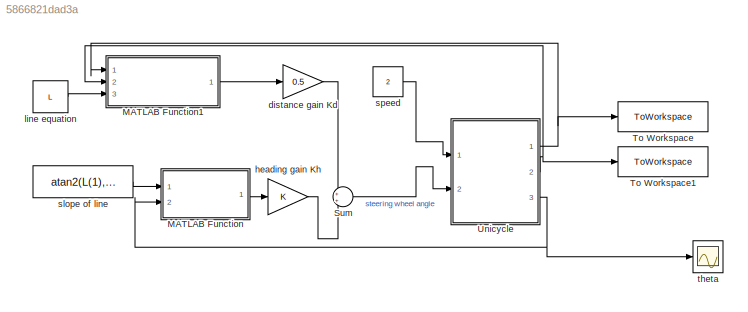
MODEL slx_5866821dad3a
KIND model
CONFIG AbsTol = auto
CONFIG EnableMultiTasking = off
CONFIG FixedStep = auto
CONFIG InitFcn = if ~exist('x0')\n  x0 = [0 0 0];\n  msgbox(sprintf('x0 not defined in workspace, setting it to [%g %g %g]\n', x0));\nend\nif ~exist('L')\n  L = [1 -1 0];\n  msgbox(sprintf('L not defined in workspace, setting it to [%g %g %g]\n', L));\nend\n% clean up old vehicle icons\nset(0, 'ShowHiddenHandles', 'on')\ndelete(findobj('Tag', 'vehicle'))\nset(0, 'ShowHiddenHandles', 'off')
CONFIG MaxStep = auto
CONFIG MinStep = auto
CONFIG RelTol = 1e-3
CONFIG SampleTimeConstraint = Unconstrained
CONFIG SolverName = VariableStepAuto
CONFIG StartTime = 0.0
CONFIG StopFcn = % update the XY scope\nset(0, 'ShowHiddenHandles', 'on')\nfig = findobj('name', 'XY');\nax = findobj(fig, 'type', 'axes');\naxes(ax)\ngrid on\nhold on\n%plot_vehicle(x0, 'g', 'Tag', 'vehicle')\n%plot_homline(L, 'r--', 'Tag', 'vehicle')\nhold off\nset(0, 'ShowHiddenHandles', 'off')
CONFIG StopTime = 20.0
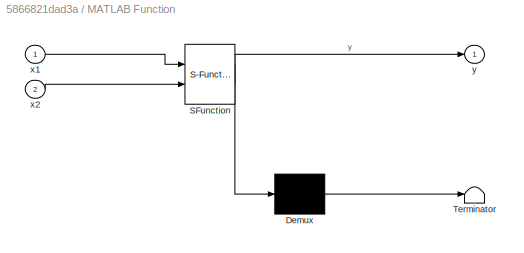
BLOCK [SubSystem] MATLAB Function
  ErrorFcn = Stateflow.Translate.translate
  PermitHierarchicalResolution = ExplicitOnly
  Ports = [2, 1]
  RequestExecContextInheritance = off
  SFBlockType = MATLAB Function
  TreatAsAtomicUnit = on
BLOCK [Demux] MATLAB Function/ Demux 
  Outputs = 1
  Ports = [1, 1]
BLOCK [S-Function] MATLAB Function/ SFunction 
  EnableBusSupport = on
  FunctionName = sf_sfun
  PortCounts = [2 2]
  Ports = [2, 2]
  SFcnIsStateOwnerBlock = off
  SFunctionDeploymentMode = off
  Tag = Stateflow S-Function 2
BLOCK [Terminator] MATLAB Function/ Terminator 
BLOCK [Inport] MATLAB Function/x1
BLOCK [Inport] MATLAB Function/x2
  Port = 2
BLOCK [Outport] MATLAB Function/y
  VectorParamsAs1DForOutWhenUnconnected = off
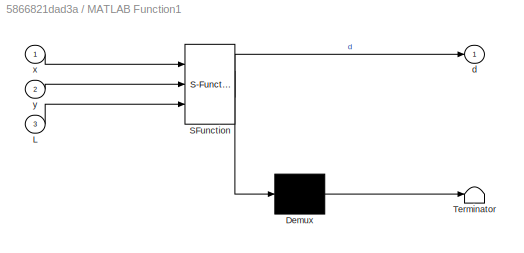
BLOCK [SubSystem] MATLAB Function1
  ErrorFcn = Stateflow.Translate.translate
  PermitHierarchicalResolution = ExplicitOnly
  Ports = [3, 1]
  RequestExecContextInheritance = off
  SFBlockType = MATLAB Function
  TreatAsAtomicUnit = on
BLOCK [Demux] MATLAB Function1/ Demux 
  Outputs = 1
  Ports = [1, 1]
BLOCK [S-Function] MATLAB Function1/ SFunction 
  EnableBusSupport = on
  FunctionName = sf_sfun
  PortCounts = [3 2]
  Ports = [3, 2]
  SFcnIsStateOwnerBlock = off
  SFunctionDeploymentMode = off
  Tag = Stateflow S-Function 1
BLOCK [Terminator] MATLAB Function1/ Terminator 
BLOCK [Inport] MATLAB Function1/L
  Port = 3
BLOCK [Outport] MATLAB Function1/d
  VectorParamsAs1DForOutWhenUnconnected = off
BLOCK [Inport] MATLAB Function1/x
BLOCK [Inport] MATLAB Function1/y
  Port = 2
BLOCK [Sum] Sum
  Ports = [2, 1]
BLOCK [ToWorkspace] To Workspace
  FixptAsFi = on
  MaxDataPoints = inf
  Ports = [1]
  SampleTime = -1
  Save2DSignal = 2-D array (concatenate along first dimension)
  VariableName = x
BLOCK [ToWorkspace] To Workspace1
  FixptAsFi = on
  MaxDataPoints = inf
  Ports = [1]
  SampleTime = -1
  Save2DSignal = 2-D array (concatenate along first dimension)
  VariableName = y
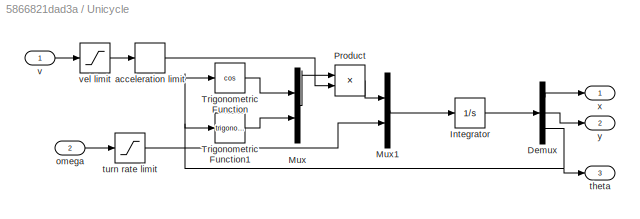
BLOCK [SubSystem] Unicycle
  Ports = [2, 3]
  RequestExecContextInheritance = off
BLOCK [Demux] Unicycle/Demux
  Outputs = 3
  Ports = [1, 3]
BLOCK [Integrator] Unicycle/Integrator
  InitialCondition = x0
  Ports = [1, 1]
BLOCK [Mux] Unicycle/Mux
  DisplayOption = bar
  Inputs = 2
  Ports = [2, 1]
BLOCK [Mux] Unicycle/Mux1
  DisplayOption = bar
  Inputs = 2
  Ports = [2, 1]
BLOCK [Product] Unicycle/Product
  Ports = [2, 1]
  RndMeth = Zero
BLOCK [Trigonometry] Unicycle/Trigonometric Function
  Operator = cos
  Ports = [1, 1]
BLOCK [Trigonometry] Unicycle/Trigonometric Function1
  Ports = [1, 1]
BLOCK [RateLimiter] Unicycle/acceleration limit
  FallingSlewLimit = -al
  RisingSlewLimit = al
  SampleTimeMode = inherited
BLOCK [Inport] Unicycle/omega
  Port = 2
BLOCK [Outport] Unicycle/theta
  Port = 3
  VectorParamsAs1DForOutWhenUnconnected = off
BLOCK [Saturate] Unicycle/turn rate limit
  LowerLimit = -ol
  UpperLimit = ol
BLOCK [Inport] Unicycle/v
BLOCK [Saturate] Unicycle/vel limit
  LowerLimit = -vl
  UpperLimit = vl
BLOCK [Outport] Unicycle/x
  VectorParamsAs1DForOutWhenUnconnected = off
BLOCK [Outport] Unicycle/y
  Port = 2
  VectorParamsAs1DForOutWhenUnconnected = off
BLOCK [Gain] distance gain Kd
  Gain = 0.5
BLOCK [Gain] heading gain Kh
BLOCK [Constant] line equation
  Value = L
BLOCK [Constant] slope of line
  Value = atan2(L(1),-L(2))
BLOCK [Constant] speed
  SampleTime = 0.02
  Value = 2
  VectorParams1D = off
BLOCK [Scope] theta
  Floating = off
  NumInputPorts = 1
  Ports = [1]
  ScopeSpecificationString = Simulink.scopes.TimeScopeBlockCfg('CurrentConfiguration', extmgr.ConfigurationSet(extmgr.Configuration('Core','General UI',true),extmgr.Configuration('Core','Source UI',true),extmgr.Configuration('Sources','WiredSimulink',true,'DataLoggingSaveFormat','StructureWithTime','DataLoggingDecimation','1'),extmgr.Configuration('Visuals','Time Domain',true,'SerializedDisplays',{struct('MinYLimReal','-0.078...<+1708ch>
LINE MATLAB Function1:1 -> distance gain Kd:1
LINE MATLAB Function:1 -> heading gain Kh:1
LINE Sum:1 -> Unicycle:2
LINE Unicycle/Demux:1 -> Unicycle/x:1
LINE Unicycle/Demux:2 -> Unicycle/y:1
NET Unicycle/Demux:3 -> Unicycle/Trigonometric Function1:1, Unicycle/Trigonometric Function:1, Unicycle/theta:1
LINE Unicycle/Integrator:1 -> Unicycle/Demux:1
LINE Unicycle/Mux1:1 -> Unicycle/Integrator:1
LINE Unicycle/Mux:1 -> Unicycle/Product:1
LINE Unicycle/Product:1 -> Unicycle/Mux1:1
LINE Unicycle/Trigonometric Function1:1 -> Unicycle/Mux:2
LINE Unicycle/Trigonometric Function:1 -> Unicycle/Mux:1
LINE Unicycle/acceleration limit:1 -> Unicycle/Product:2
LINE Unicycle/omega:1 -> Unicycle/turn rate limit:1
LINE Unicycle/turn rate limit:1 -> Unicycle/Mux1:2
LINE Unicycle/v:1 -> Unicycle/vel limit:1
LINE Unicycle/vel limit:1 -> Unicycle/acceleration limit:1
NET Unicycle:1 -> MATLAB Function1:1, To Workspace:1
NET Unicycle:2 -> MATLAB Function1:2, To Workspace1:1
NET Unicycle:3 -> MATLAB Function:2, theta:1
LINE distance gain Kd:1 -> Sum:1
LINE heading gain Kh:1 -> Sum:2
LINE line equation:1 -> MATLAB Function1:3
LINE slope of line:1 -> MATLAB Function:1
LINE speed:1 -> Unicycle:1
note: NET lines group one-source signal fan-out (src -> all destinations, sorted); 1:1 wires keep LINE
CHART MATLAB Function states=1 transitions=1
  STATE_LABEL 'eML_blk_kernel()'
  STATE_LABEL 'SCRIPT:\nfunction y = ang_diff(x1,x2)\n\ny = angdiff(x1,x2);\n'
CHART MATLAB Function1 states=1 transitions=1
  STATE_LABEL 'eML_blk_kernel()'
  STATE_LABEL 'SCRIPT:\nfunction d = dist_from_line(x,y,L)\nd = (x*L(1)+y*L(2)+L(3))/sqrt(L(1)^2+L(2)^2);\n'
CHART  states=0 transitions=0
CHART  states=0 transitions=0
